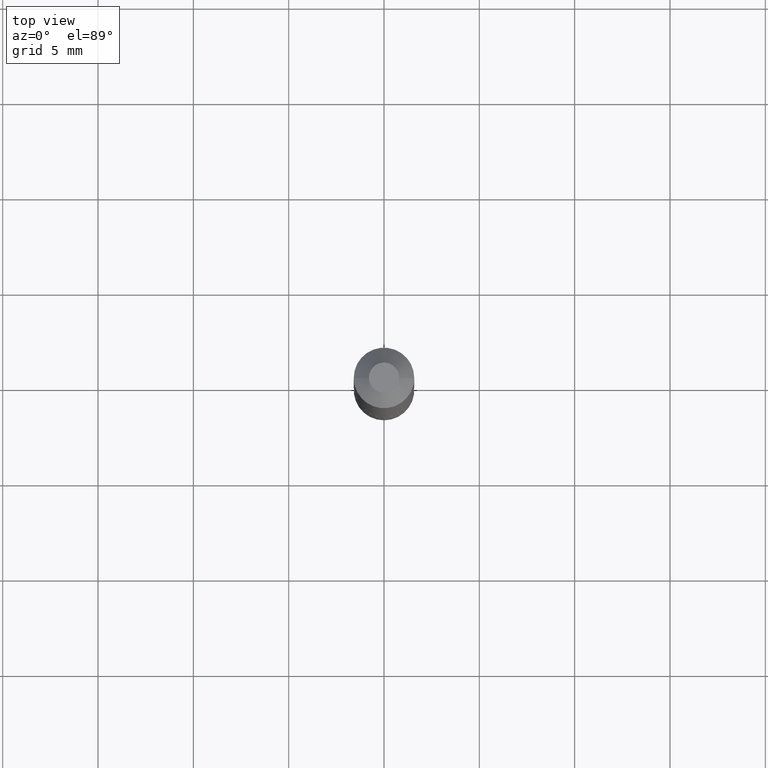
[diagram: clean part render]
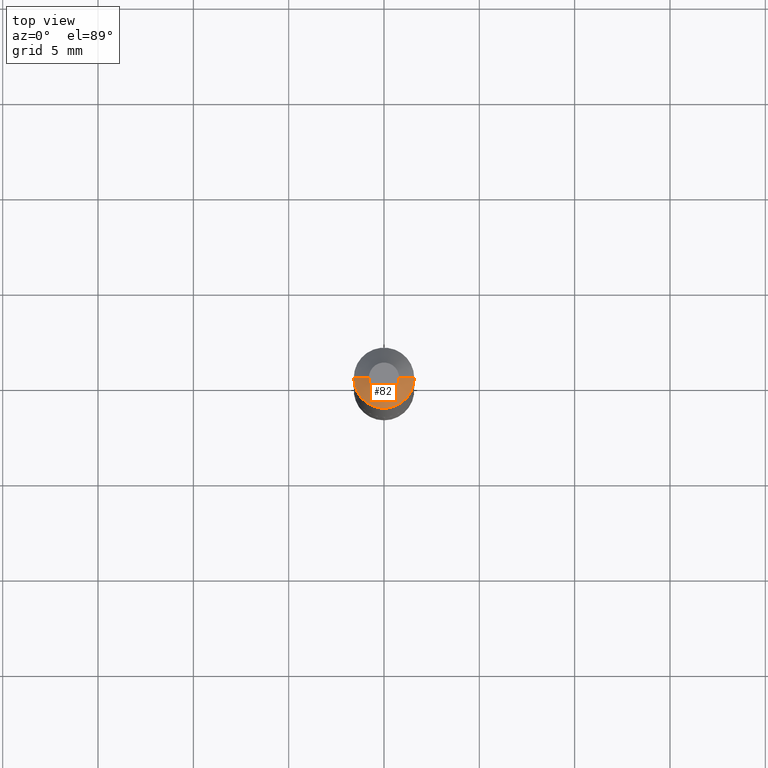
[diagram: same view with one face highlighted and labeled with its STEP entity id]
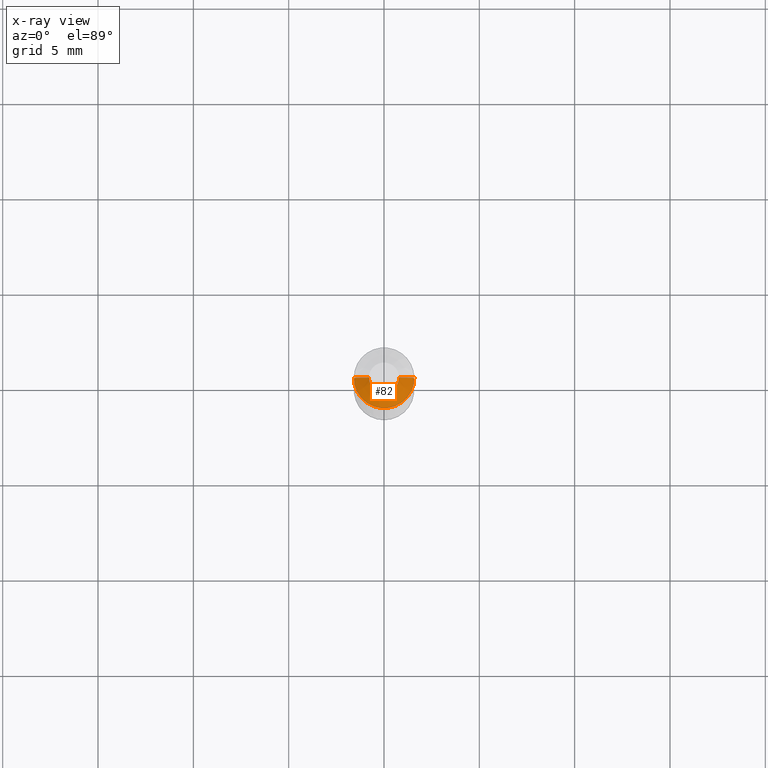
[diagram: x-ray of the same camera — body ghosted, the highlighted face saturated]
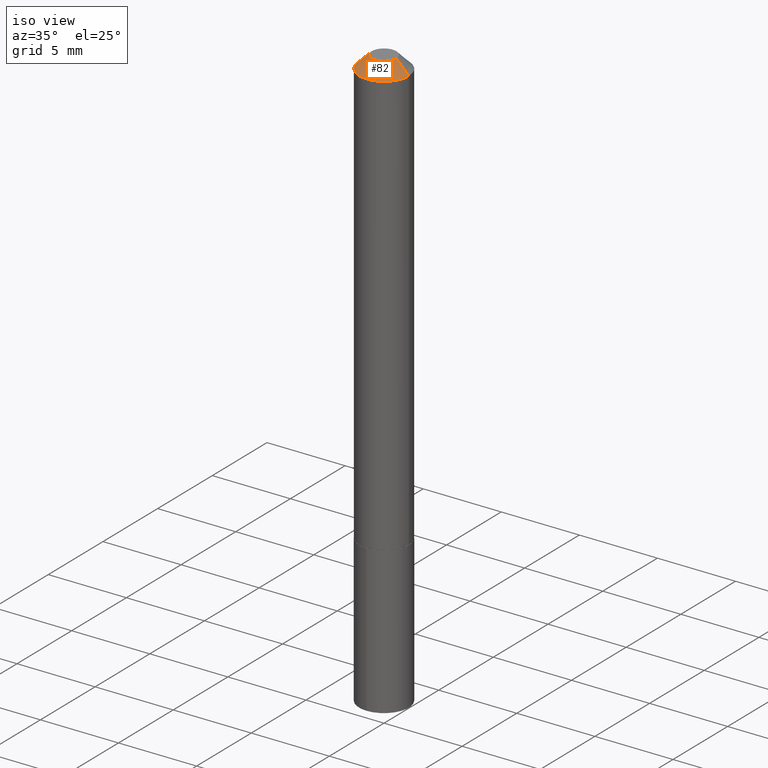
[diagram: same view with one face highlighted and labeled with its STEP entity id]
A machine part, top view. The second image highlights one B-rep face of the part: STEP entity #82.
The next image is the same camera in x-ray: the body ghosted, the highlighted face saturated — about 0% of this face is hidden behind the body in this view.
A second angle (iso view) of the same face is appended — the face is thin or edge-on in the first view.
In plain terms, the highlighted conical surface has half-angle 45 deg.
Its self-contained STEP definition (entity closure, byte-faithful):
#4 = CARTESIAN_POINT ( 'NONE',  ( -1.033218263338717117E-47, 1.475161848834455079E-33, 4.225031457058366143E-19 ) ) ;
#35 = DIRECTION ( 'NONE',  ( 2.445468806185136597E-29, -3.491481338843145583E-15, -1.000000000000000000 ) ) ;
#41 = CARTESIAN_POINT ( 'NONE',  ( -0.03125000000000000000, 2.727719795971193003E-16, 4.225031457041200329E-19 ) ) ;
#45 = DIRECTION ( 'NONE',  ( -0.7071067811865453523, 2.468850131082234184E-15, -0.7071067811865496822 ) ) ;
#48 = ORIENTED_EDGE ( 'NONE', *, *, #169, .T. ) ;
#59 = CIRCLE ( 'NONE', #166, 0.06250000000000001388 ) ;
#61 = CARTESIAN_POINT ( 'NONE',  ( 0.06250000000000001388, -5.378899166995698233E-16, -0.03125000000000020123 ) ) ;
#82 = ADVANCED_FACE ( 'NONE', ( #92 ), #369, .T. ) ;
#85 = AXIS2_PLACEMENT_3D ( 'NONE', #4, #156, #386 ) ;
#92 = FACE_OUTER_BOUND ( 'NONE', #237, .T. ) ;
#123 = CARTESIAN_POINT ( 'NONE',  ( 7.642090019328601786E-31, -1.091087918388490144E-16, -0.03125000000000020123 ) ) ;
#140 = CARTESIAN_POINT ( 'NONE',  ( -0.06250000000000001388, 3.273263755165427167E-16, -0.03125000000000020123 ) ) ;
#144 = ORIENTED_EDGE ( 'NONE', *, *, #239, .F. ) ;
#145 = VECTOR ( 'NONE', #45, 39.37007874015748143 ) ;
#156 = DIRECTION ( 'NONE',  ( -2.445468806185136597E-29, 3.491481338843145583E-15, 1.000000000000000000 ) ) ;
#162 = DIRECTION ( 'NONE',  ( -2.445468806185136597E-29, 3.491481338843145583E-15, 1.000000000000000000 ) ) ;
#166 = AXIS2_PLACEMENT_3D ( 'NONE', #123, #162, #276 ) ;
#169 = EDGE_CURVE ( 'NONE', #377, #366, #59, .T. ) ;
#171 = CARTESIAN_POINT ( 'NONE',  ( 0.03125000000000000000, -3.761402395649650430E-16, 4.225031457079141149E-19 ) ) ;
#185 = DIRECTION ( 'NONE',  ( 0.7071067811865453523, -7.319954787623248157E-15, -0.7071067811865496822 ) ) ;
#199 = EDGE_CURVE ( 'NONE', #266, #327, #329, .T. ) ;
#237 = EDGE_LOOP ( 'NONE', ( #144, #281, #250, #48 ) ) ;
#239 = EDGE_CURVE ( 'NONE', #327, #366, #328, .T. ) ;
#244 = DIRECTION ( 'NONE',  ( -1.000000000000000000, 6.982962677686265922E-15, 0.000000000000000000 ) ) ;
#250 = ORIENTED_EDGE ( 'NONE', *, *, #358, .T. ) ;
#266 = VERTEX_POINT ( 'NONE', #41 ) ;
#275 = CARTESIAN_POINT ( 'NONE',  ( 7.642090019328601786E-31, -1.091087918388490144E-16, -0.03125000000000020123 ) ) ;
#276 = DIRECTION ( 'NONE',  ( 1.000000000000000000, -6.982962677686265922E-15, 0.000000000000000000 ) ) ;
#281 = ORIENTED_EDGE ( 'NONE', *, *, #199, .F. ) ;
#282 = LINE ( 'NONE', #140, #145 ) ;
#314 = CARTESIAN_POINT ( 'NONE',  ( -0.06250000000000001388, -1.529907052098379853E-15, -0.03125000000000020123 ) ) ;
#327 = VERTEX_POINT ( 'NONE', #171 ) ;
#328 = LINE ( 'NONE', #61, #379 ) ;
#329 = CIRCLE ( 'NONE', #85, 0.03125000000000000000 ) ;
#337 = CARTESIAN_POINT ( 'NONE',  ( 0.06250000000000001388, -5.455439591942407701E-16, -0.03125000000000020123 ) ) ;
#358 = EDGE_CURVE ( 'NONE', #266, #377, #282, .T. ) ;
#366 = VERTEX_POINT ( 'NONE', #337 ) ;
#369 = CONICAL_SURFACE ( 'NONE', #384, 0.06250000000000001388, 0.7853981633974452814 ) ;
#377 = VERTEX_POINT ( 'NONE', #314 ) ;
#379 = VECTOR ( 'NONE', #185, 39.37007874015748143 ) ;
#384 = AXIS2_PLACEMENT_3D ( 'NONE', #275, #35, #244 ) ;
#386 = DIRECTION ( 'NONE',  ( 1.000000000000000000, -6.982962677686266711E-15, 4.876242311950517246E-29 ) ) ;